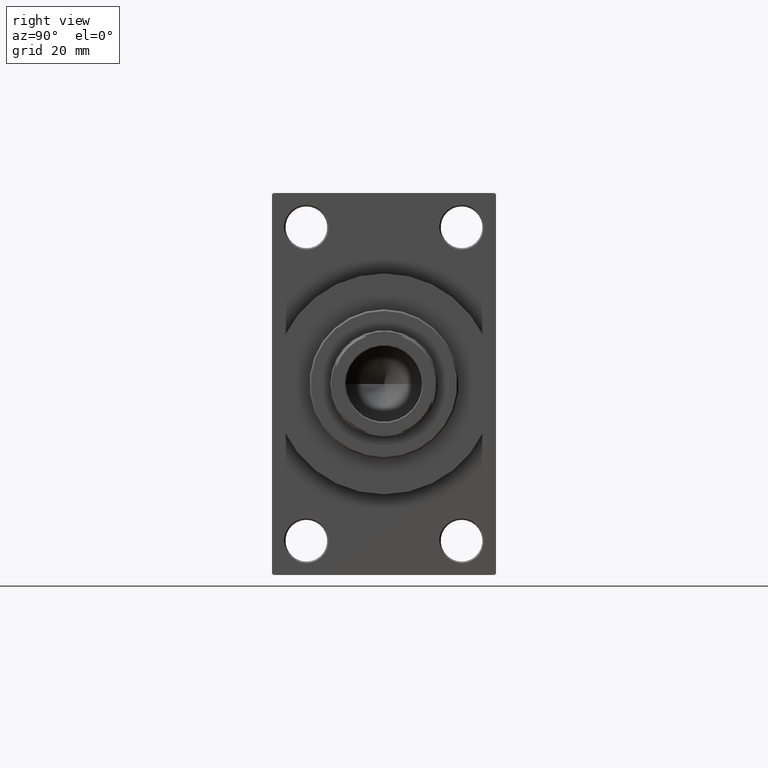
[diagram: clean part render]
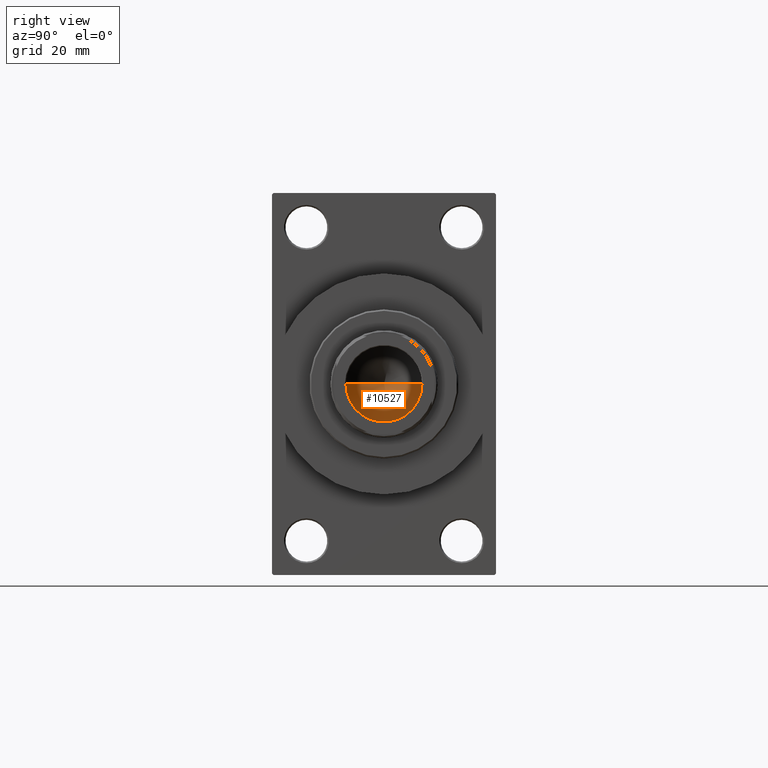
[diagram: same view with one face highlighted and labeled with its STEP entity id]
A machine part, right view. The second image highlights one B-rep face of the part: STEP entity #10527.
In plain terms, the highlighted conical surface has half-angle 59 deg.
Its self-contained STEP definition (entity closure, byte-faithful):
#371 = CARTESIAN_POINT ( 'NONE',  ( -1.323906893019387300E-14, 0.000000000000000000, 89.33902710739862130 ) ) ;
#1723 = EDGE_CURVE ( 'NONE', #24087, #3793, #33977, .T. ) ;
#3793 = VERTEX_POINT ( 'NONE', #4314 ) ;
#4314 = CARTESIAN_POINT ( 'NONE',  ( -12.74999999999999112, 1.561424668912874125E-15, 97.00000000000001421 ) ) ;
#5183 = EDGE_LOOP ( 'NONE', ( #35855, #29695, #14401 ) ) ;
#6445 = DIRECTION ( 'NONE',  ( 1.000000000000000000, 0.000000000000000000, 0.000000000000000000 ) ) ;
#7725 = VECTOR ( 'NONE', #38016, 1000.000000000000000 ) ;
#8525 = CIRCLE ( 'NONE', #35998, 12.74999999999999112 ) ;
#10152 = LINE ( 'NONE', #43565, #35074 ) ;
#10527 = ADVANCED_FACE ( 'NONE', ( #28406 ), #27762, .F. ) ;
#12889 = DIRECTION ( 'NONE',  ( -0.000000000000000000, -0.000000000000000000, 1.000000000000000000 ) ) ;
#14401 = ORIENTED_EDGE ( 'NONE', *, *, #44956, .T. ) ;
#18617 = AXIS2_PLACEMENT_3D ( 'NONE', #32217, #12889, #6445 ) ;
#20916 = DIRECTION ( 'NONE',  ( 0.8571673007021117785, 0.000000000000000000, 0.5150380749100550437 ) ) ;
#22784 = DIRECTION ( 'NONE',  ( 1.000000000000000000, 0.000000000000000000, 0.000000000000000000 ) ) ;
#24087 = VERTEX_POINT ( 'NONE', #371 ) ;
#25652 = CARTESIAN_POINT ( 'NONE',  ( 12.74999999999999112, 0.000000000000000000, 97.00000000000001421 ) ) ;
#26997 = EDGE_CURVE ( 'NONE', #24087, #46619, #10152, .T. ) ;
#27762 = CONICAL_SURFACE ( 'NONE', #18617, 12.74999999999999112, 1.029744258676653423 ) ;
#28406 = FACE_OUTER_BOUND ( 'NONE', #5183, .T. ) ;
#29695 = ORIENTED_EDGE ( 'NONE', *, *, #26997, .T. ) ;
#30901 = DIRECTION ( 'NONE',  ( -0.000000000000000000, -0.000000000000000000, 1.000000000000000000 ) ) ;
#32217 = CARTESIAN_POINT ( 'NONE',  ( 0.000000000000000000, 0.000000000000000000, 97.00000000000001421 ) ) ;
#33977 = LINE ( 'NONE', #37790, #7725 ) ;
#35074 = VECTOR ( 'NONE', #20916, 1000.000000000000000 ) ;
#35855 = ORIENTED_EDGE ( 'NONE', *, *, #1723, .F. ) ;
#35998 = AXIS2_PLACEMENT_3D ( 'NONE', #44966, #30901, #22784 ) ;
#37790 = CARTESIAN_POINT ( 'NONE',  ( -12.74999999999999112, 1.561424668912874125E-15, 97.00000000000001421 ) ) ;
#38016 = DIRECTION ( 'NONE',  ( -0.8571673007021117785, 1.049727191138617956E-16, 0.5150380749100550437 ) ) ;
#43565 = CARTESIAN_POINT ( 'NONE',  ( 12.74999999999999112, 0.000000000000000000, 97.00000000000001421 ) ) ;
#44956 = EDGE_CURVE ( 'NONE', #46619, #3793, #8525, .T. ) ;
#44966 = CARTESIAN_POINT ( 'NONE',  ( 0.000000000000000000, 0.000000000000000000, 97.00000000000001421 ) ) ;
#46619 = VERTEX_POINT ( 'NONE', #25652 ) ;